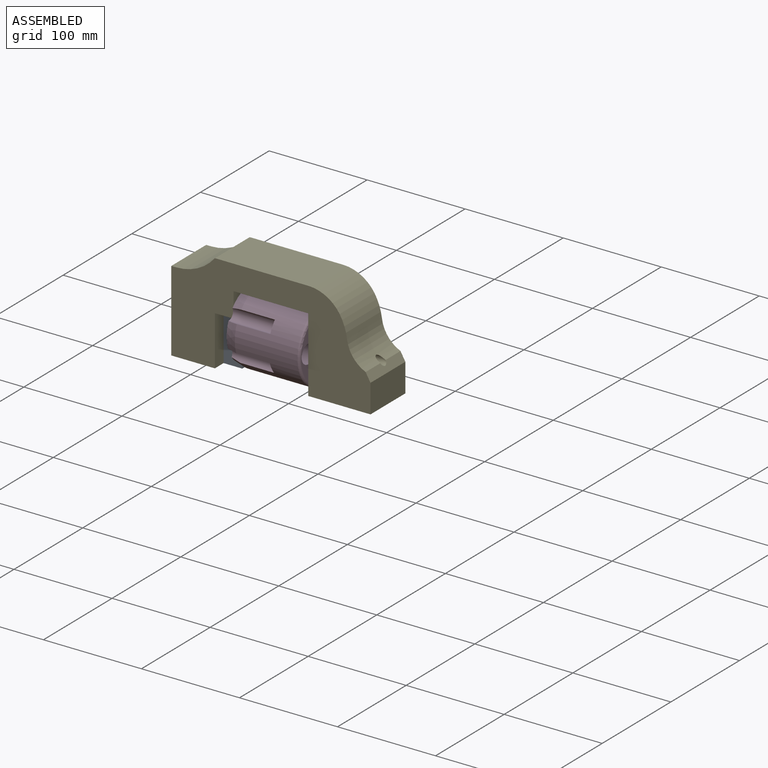
[diagram: assembled view]
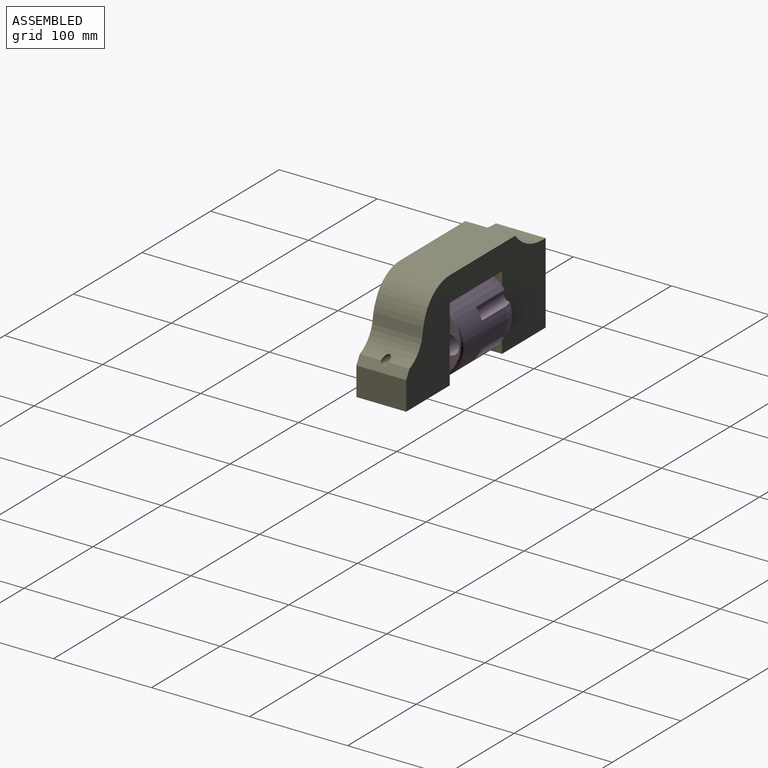
[diagram: assembled view, second angle]
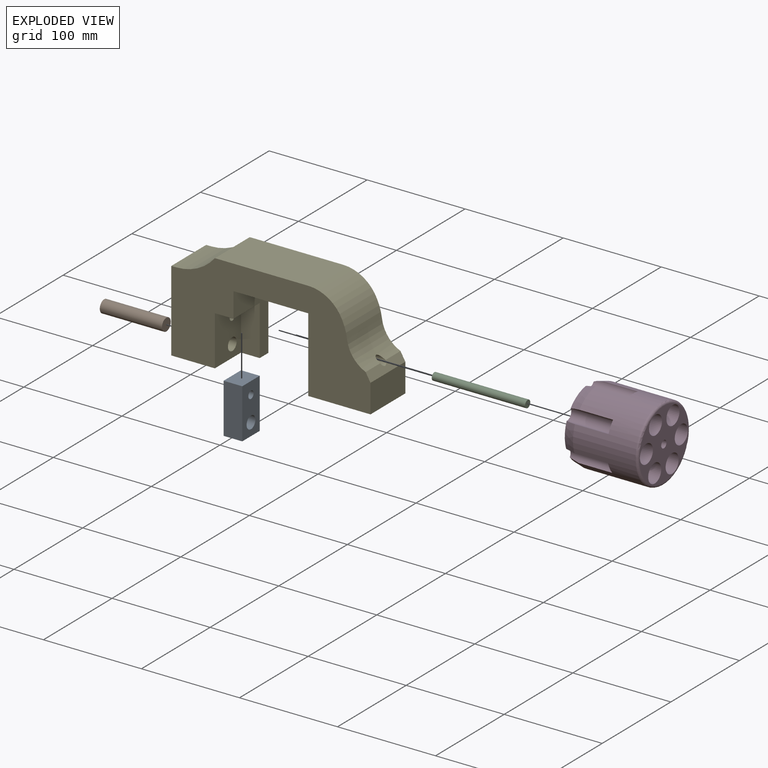
[diagram: exploded view]
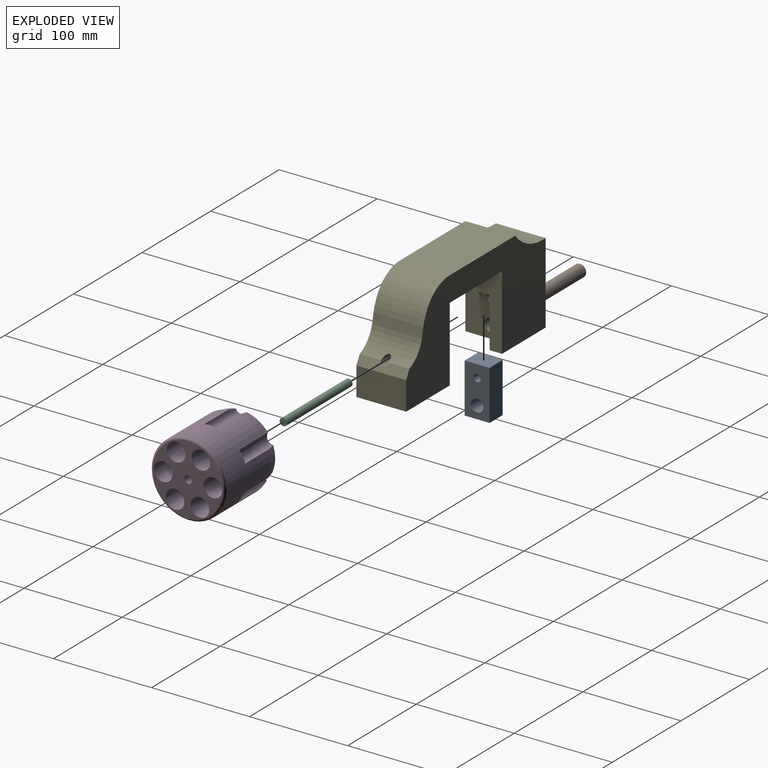
[diagram: exploded view, second angle]
ASSEMBLY  parts=5 mates=4
PART A: 8 faces, bbox 19.1x25.4x50.8 mm
  f0: plane 50.8x25.4mm, normal (-1,0,0), area 1118mm2, adj f1,f2,f4,f5,f6,f7
  f1: plane 25.4x19.05mm, normal (0,0,-1), area 483.9mm2, adj f0,f3,f6,f7
  f2: plane 25.4x19.05mm, normal (0,0,1), area 483.9mm2, adj f0,f3,f6,f7
  f3: plane 50.8x25.4mm, normal (1,0,0), area 1118mm2, adj f1,f2,f4,f5,f6,f7
  f4: cylinder r=3.81mm len=19.05mm, axis (1,0,0), area 456mm2, adj f0,f3
  f5: cylinder r=6.35mm len=19.05mm, axis (-1,0,0), area 760.1mm2, adj f0,f3
  f6: plane 50.8x19.05mm, normal (0,-1,0), area 967.7mm2, adj f0,f1,f2,f3
  f7: plane 50.8x19.05mm, normal (0,1,0), area 967.7mm2, adj f0,f1,f2,f3
PART B: 3 faces, bbox 12.7x63.5x12.7 mm
  f0: cylinder r=6.35mm len=63.5mm, axis (0,1,0), area 2533.5mm2, adj f1,f2
  f1: plane 12.7x12.7mm, normal (0,-1,0), area 126.7mm2, adj f0
  f2: plane 12.7x12.7mm, normal (0,1,0), area 126.7mm2, adj f0
PART C: 3 faces, bbox 7.6x95.3x7.6 mm
  f0: cylinder r=3.81mm len=95.25mm, axis (0,1,0), area 2280.2mm2, adj f1,f2
  f1: plane 7.62x7.62mm, normal (0,-1,0), area 45.6mm2, adj f0
  f2: plane 7.62x7.62mm, normal (0,1,0), area 45.6mm2, adj f0
PART D: 29 faces, bbox 82.5x76.2x82.5 mm
  f0: plane 71.12x70.23mm, normal (0,1,0), area 2035.6mm2, adj f3,f4,f5,f6,f7,f8,f9,f11
  f1: cylinder r=38.1mm len=76.2mm, axis (0,1,0), area 12585.3mm2, adj f9,f10,f11,f12,f13,f14,f15,f16
  f2: plane 71.12x71.12mm, normal (0,-1,0), area 2216.8mm2, adj f3,f4,f5,f6,f7,f8,f21,f28
  f3: cylinder r=9.53mm len=76.2mm, axis (0,-1,0), area 4560.4mm2, adj f0,f2
  f4: cylinder r=9.53mm len=76.2mm, axis (0,-1,0), area 4560.4mm2, adj f0,f2
  f5: cylinder r=9.53mm len=76.2mm, axis (0,-1,0), area 4560.4mm2, adj f0,f2
  f6: cylinder r=9.53mm len=76.2mm, axis (0,-1,0), area 4560.4mm2, adj f0,f2
  f7: cylinder r=9.53mm len=76.2mm, axis (0,-1,0), area 4560.4mm2, adj f0,f2
  f8: cylinder r=9.53mm len=76.2mm, axis (0,-1,0), area 4560.4mm2, adj f0,f2
  f9: cylinder r=6.35mm len=44.45mm, axis (0,1,0), area 813.7mm2, adj f0,f1,f10,f26,f27
  f10: plane 11.57x9.06mm, normal (0,1,0), area 61.1mm2, adj f1,f9
  f11: cylinder r=6.35mm len=44.45mm, axis (0,1,0), area 813.7mm2, adj f0,f1,f12,f25,f26
  f12: plane 12.66x6.35mm, normal (0,1,0), area 61.1mm2, adj f1,f11
  f13: cylinder r=6.35mm len=44.45mm, axis (0,1,0), area 813.7mm2, adj f0,f1,f14,f22,f25
  f14: plane 11.57x9.06mm, normal (0,1,0), area 61.1mm2, adj f1,f13
  f15: cylinder r=6.35mm len=44.45mm, axis (0,1,0), area 813.7mm2, adj f0,f1,f16,f22,f23
  f16: plane 11.57x9.06mm, normal (0,1,0), area 61.1mm2, adj f1,f15
  f17: cylinder r=6.35mm len=44.45mm, axis (0,1,0), area 813.7mm2, adj f0,f1,f18,f23,f24
  f18: plane 12.66x6.35mm, normal (0,1,0), area 61.1mm2, adj f1,f17
  f19: cylinder r=6.35mm len=44.45mm, axis (0,1,0), area 813.7mm2, adj f0,f1,f20,f24,f27
  f20: plane 11.57x9.06mm, normal (0,1,0), area 61.1mm2, adj f1,f19
  f21: torus R=35.56mm, axis (0,-1,0), area 932mm2, adj f1,f2
  f22: cone r=38.1mm half-angle=14deg, axis (0,-1,0), area 276.6mm2, adj f0,f1,f13,f15
  f23: cone r=38.1mm half-angle=14deg, axis (0,-1,0), area 276.6mm2, adj f0,f1,f15,f17
  f24: cone r=38.1mm half-angle=14deg, axis (0,-1,0), area 276.6mm2, adj f0,f1,f17,f19
  f25: cone r=38.1mm half-angle=14deg, axis (0,-1,0), area 276.6mm2, adj f0,f1,f11,f13
  f26: cone r=38.1mm half-angle=14deg, axis (0,-1,0), area 276.6mm2, adj f0,f1,f9,f11
  f27: cone r=38.1mm half-angle=14deg, axis (0,-1,0), area 276.6mm2, adj f0,f1,f9,f19
  f28: cylinder r=3.81mm len=76.2mm, axis (0,1,0), area 1824.1mm2, adj f0,f2
PART E: 22 faces, bbox 203.2x50.8x101.6 mm
  f0: plane 76.2x50.8mm, normal (1,0,0), area 1935.5mm2, adj f2,f4,f9,f10,f19,f20
  f1: cylinder r=3.81mm len=44.45mm, axis (1,0,0), area 1064.1mm2, adj f8,f18
  f2: plane 203.2x101.6mm, normal (0,-1,0), area 11495.3mm2, adj f0,f3,f6,f7,f8,f9,f10,f11
  f3: plane 95.25x50.8mm, normal (0,0,1), area 4838.7mm2, adj f2,f4,f11,f13
  f4: plane 203.2x101.6mm, normal (0,1,0), area 12463.1mm2, adj f0,f3,f6,f7,f8,f9,f10,f11
  f5: cylinder r=3.81mm len=60.52mm, axis (1,0,0), area 1355.4mm2, adj f6,f15,f16
  f6: plane 76.2x50.8mm, normal (-1,0,0), area 3825.4mm2, adj f2,f4,f5,f7,f10
  f7: plane 63.5x50.8mm, normal (0,0,-1), area 3225.8mm2, adj f2,f4,f6,f14
  f8: plane 82.55x50.8mm, normal (-1,0,0), area 4021.3mm2, adj f1,f2,f4,f9,f12,f21
  f9: plane 63.5x50.8mm, normal (0,0,-1), area 2500mm2, adj f0,f2,f4,f8,f18,f20
  f10: plane 76.2x50.8mm, normal (0,0,-1), area 3871mm2, adj f0,f2,f4,f6
  f11: cylinder r=38.1mm len=50.8mm, axis (0,-1,0), area 2208.4mm2, adj f2,f3,f4,f17
  f12: plane 50.8x4.79mm, normal (0,0,1), area 243.5mm2, adj f2,f4,f8,f13
  f13: cylinder r=50.8mm len=50.8mm, axis (0,1,0), area 2311.4mm2, adj f2,f3,f4,f12
  f14: plane 50.8x29.1mm, normal (1,0,0), area 1478.3mm2, adj f2,f4,f7,f15
  f15: plane 50.8x8.62mm, normal (0.87,0,0.5), area 481.8mm2, adj f2,f4,f5,f14,f16
  f16: cylinder r=31.75mm len=50.8mm, axis (0,-1,0), area 1627.1mm2, adj f2,f4,f5,f15,f17
  f17: cylinder r=50.8mm len=50.8mm, axis (0,-1,0), area 874.8mm2, adj f2,f4,f11,f16
  f18: plane 50.8x38.1mm, normal (1,0,0), area 1763.2mm2, adj f1,f2,f9,f19,f20,f21
  f19: plane 38.1x19.05mm, normal (0,0,-1), area 725.8mm2, adj f0,f2,f18,f20
  f20: plane 50.8x19.05mm, normal (0,-1,0), area 967.7mm2, adj f0,f9,f18,f19
  f21: cylinder r=6.35mm len=44.45mm, axis (-1,0,0), area 1773.5mm2, adj f8,f18
PLACE A rot(axis=(1,0.03,-0.01),0deg) t=(-103.47,-56.72,-138.95)mm
PLACE B rot(axis=(0,0,-1),90deg) t=(-84.42,-77.04,-126.25)mm
PLACE C rot(axis=(0,0,-1),90deg) t=(-8.22,-77.04,-100.85)mm
PLACE D rot(axis=(-0.7,0.7,0.18),160deg) t=(-84.42,-77.04,-100.85)mm
PLACE E t=(-147.92,-51.64,-138.95)mm fixed
MATE revolute D.f1 <-> A.f4  axis (-1,0,0) through (-84.42,-77.04,-100.85)mm
MATE revolute A.f5 <-> E.f21  axis (-1,0,0) through (-103.47,-77.04,-126.25)mm
MATE fastened C.f0 <-> A.f4  axis (-1,0,0) through (-103.47,-77.04,-100.85)mm
MATE fastened B.f0 <-> E.f21  axis (-1,0,0) through (-147.92,-77.04,-126.25)mm
